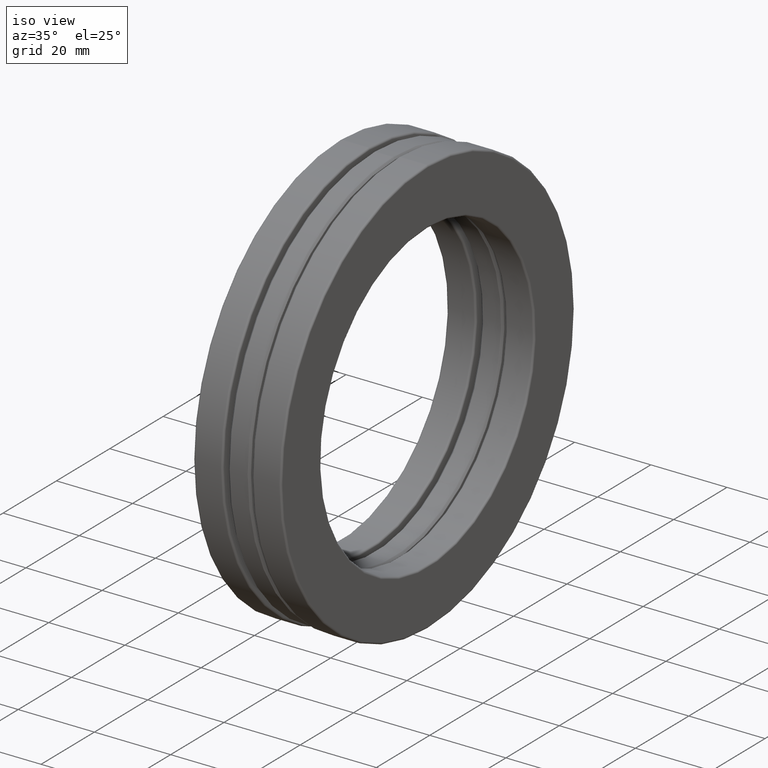
[diagram: clean part render]
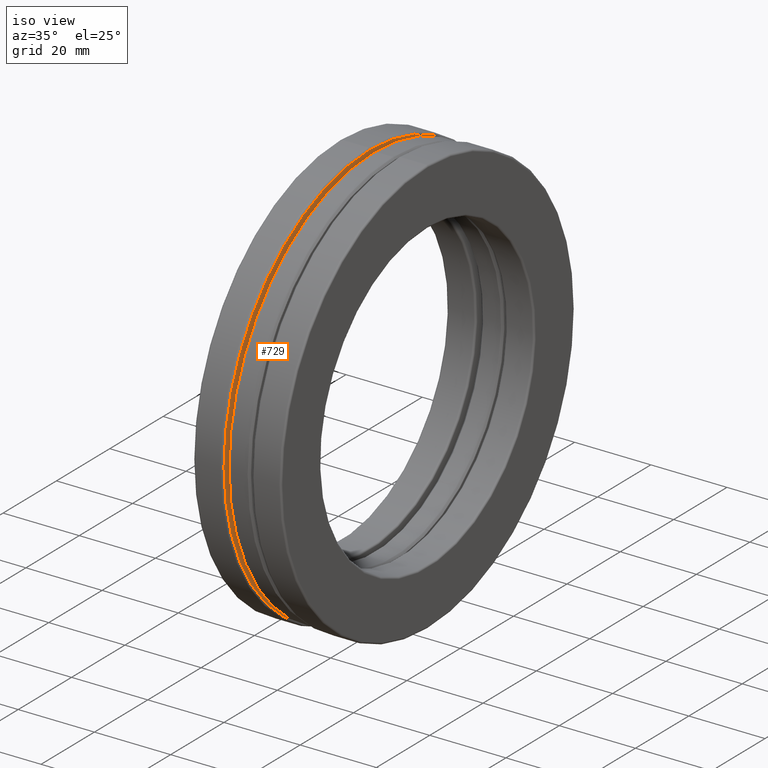
[diagram: same view with one face highlighted and labeled with its STEP entity id]
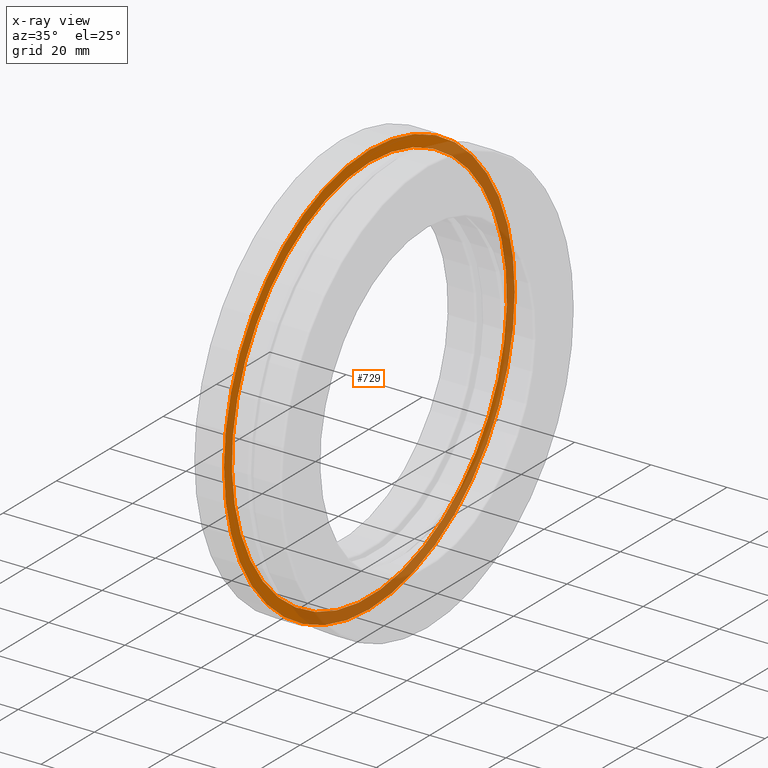
[diagram: x-ray of the same camera — body ghosted, the highlighted face saturated]
A machine part, iso view. The second image highlights one B-rep face of the part: STEP entity #729.
The next image is the same camera in x-ray: the body ghosted, the highlighted face saturated — about 46% of this face is hidden behind the body in this view.
In plain terms, the highlighted planar face has unit normal (1, 0, 0).
Its self-contained STEP definition (entity closure, byte-faithful):
#43 = CIRCLE ( 'NONE', #559, 2.028866165477796600 ) ;
#52 = EDGE_LOOP ( 'NONE', ( #759 ) ) ;
#91 = EDGE_LOOP ( 'NONE', ( #751 ) ) ;
#157 = DIRECTION ( 'NONE',  ( -1.000000000000000000, -0.0000000000000000000, -0.0000000000000000000 ) ) ;
#176 = AXIS2_PLACEMENT_3D ( 'NONE', #702, #381, #327 ) ;
#230 = DIRECTION ( 'NONE',  ( 0.0000000000000000000, 0.0000000000000000000, 1.000000000000000000 ) ) ;
#255 = DIRECTION ( 'NONE',  ( 1.000000000000000000, 0.0000000000000000000, 0.0000000000000000000 ) ) ;
#312 = PLANE ( 'NONE',  #417 ) ;
#327 = DIRECTION ( 'NONE',  ( 0.0000000000000000000, 0.0000000000000000000, 1.000000000000000000 ) ) ;
#348 = CARTESIAN_POINT ( 'NONE',  ( -0.1510030199999997900, 0.0000000000000000000, 0.0000000000000000000 ) ) ;
#381 = DIRECTION ( 'NONE',  ( -1.000000000000000000, -0.0000000000000000000, -0.0000000000000000000 ) ) ;
#417 = AXIS2_PLACEMENT_3D ( 'NONE', #433, #255, #694 ) ;
#431 = CARTESIAN_POINT ( 'NONE',  ( -0.1510030199999997900, 0.0000000000000000000, 2.028866165477796600 ) ) ;
#433 = CARTESIAN_POINT ( 'NONE',  ( -0.1510030199999997900, 0.0000000000000000000, 0.0000000000000000000 ) ) ;
#436 = EDGE_CURVE ( 'NONE', #696, #696, #614, .T. ) ;
#450 = FACE_BOUND ( 'NONE', #52, .T. ) ;
#559 = AXIS2_PLACEMENT_3D ( 'NONE', #348, #157, #230 ) ;
#579 = VERTEX_POINT ( 'NONE', #431 ) ;
#614 = CIRCLE ( 'NONE', #176, 2.145500000000000200 ) ;
#671 = EDGE_CURVE ( 'NONE', #579, #579, #43, .T. ) ;
#694 = DIRECTION ( 'NONE',  ( 0.0000000000000000000, 0.0000000000000000000, -1.000000000000000000 ) ) ;
#696 = VERTEX_POINT ( 'NONE', #728 ) ;
#702 = CARTESIAN_POINT ( 'NONE',  ( -0.1510030199999997900, 0.0000000000000000000, 0.0000000000000000000 ) ) ;
#728 = CARTESIAN_POINT ( 'NONE',  ( -0.1510030199999997900, 0.0000000000000000000, 2.145500000000000200 ) ) ;
#729 = ADVANCED_FACE ( 'NONE', ( #450, #747 ), #312, .T. ) ;
#747 = FACE_OUTER_BOUND ( 'NONE', #91, .T. ) ;
#751 = ORIENTED_EDGE ( 'NONE', *, *, #436, .F. ) ;
#759 = ORIENTED_EDGE ( 'NONE', *, *, #671, .T. ) ;